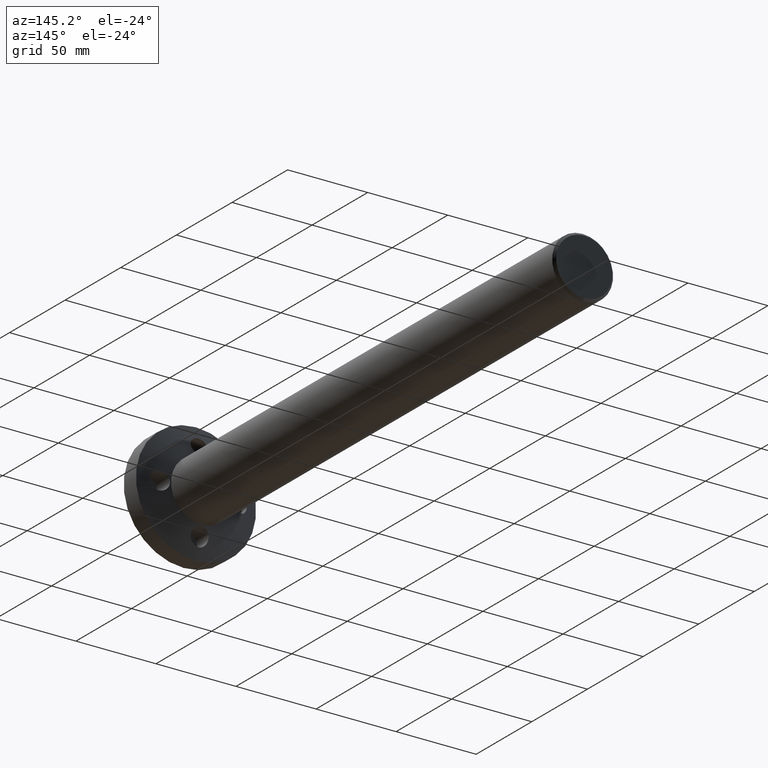
[diagram: clean part render]
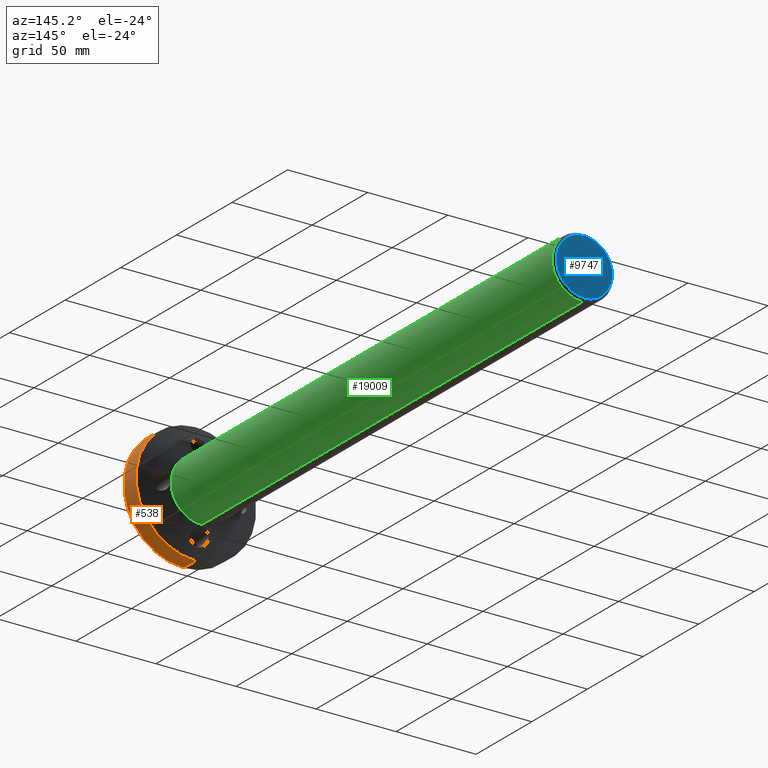
[diagram: same view with three faces highlighted in distinct colors, each labeled with its STEP entity id]
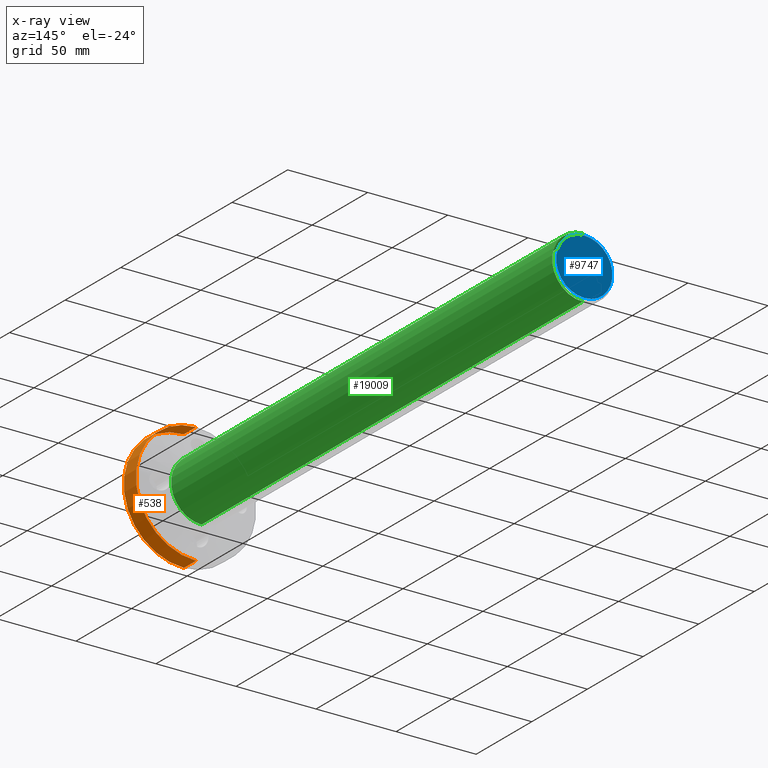
[diagram: x-ray of the same camera — body ghosted, the three highlighted faces saturated]
A machine part, auxiliary view with three faces highlighted in distinct colors.
The next image is the same camera in x-ray (body ghosted, the three faces saturated) — at least one of them is partly hidden behind the body in this view.
Their STEP definitions:

[orange] entity #538 — the highlighted cylindrical surface (partial cylindrical patch) has radius 37.5 mm, axis along (-0, -1, -0).
#434 = ORIENTED_EDGE ( 'NONE', *, *, #9275, .F. ) ;
#538 = ADVANCED_FACE ( 'NONE', ( #11305 ), #5795, .T. ) ;
#780 = CARTESIAN_POINT ( 'NONE',  ( 4.592425496802574400E-015, -19.77435314003868400, 37.50000000000000000 ) ) ;
#929 = EDGE_CURVE ( 'NONE', #5955, #2193, #1506, .T. ) ;
#983 = DIRECTION ( 'NONE',  ( -0.0000000000000000000, -1.000000000000000000, -0.0000000000000000000 ) ) ;
#1505 = CIRCLE ( 'NONE', #18237, 37.50000000000000000 ) ;
#1506 = CIRCLE ( 'NONE', #12130, 37.50000000000000000 ) ;
#1521 = DIRECTION ( 'NONE',  ( -0.0000000000000000000, -1.000000000000000000, -0.0000000000000000000 ) ) ;
#2193 = VERTEX_POINT ( 'NONE', #6236 ) ;
#4008 = VECTOR ( 'NONE', #1521, 1000.000000000000000 ) ;
#5655 = ORIENTED_EDGE ( 'NONE', *, *, #929, .F. ) ;
#5795 = CYLINDRICAL_SURFACE ( 'NONE', #17612, 37.50000000000000000 ) ;
#5955 = VERTEX_POINT ( 'NONE', #11967 ) ;
#6236 = CARTESIAN_POINT ( 'NONE',  ( 4.592425496802574400E-015, -3.070097820889738900, 37.50000000000000000 ) ) ;
#6649 = CARTESIAN_POINT ( 'NONE',  ( 0.0000000000000000000, 7.929902179110256600, -37.50000000000000700 ) ) ;
#6732 = VERTEX_POINT ( 'NONE', #7217 ) ;
#7069 = DIRECTION ( 'NONE',  ( -0.0000000000000000000, -1.000000000000000000, -0.0000000000000000000 ) ) ;
#7107 = LINE ( 'NONE', #780, #10692 ) ;
#7217 = CARTESIAN_POINT ( 'NONE',  ( 4.592425496802575200E-015, 7.929902179110256600, 37.50000000000000700 ) ) ;
#8534 = VERTEX_POINT ( 'NONE', #6649 ) ;
#8800 = CARTESIAN_POINT ( 'NONE',  ( 0.0000000000000000000, -19.77435314003868400, 0.0000000000000000000 ) ) ;
#8928 = CARTESIAN_POINT ( 'NONE',  ( 0.0000000000000000000, 7.929902179110256600, 0.0000000000000000000 ) ) ;
#9275 = EDGE_CURVE ( 'NONE', #8534, #5955, #10217, .T. ) ;
#9500 = EDGE_CURVE ( 'NONE', #6732, #2193, #7107, .T. ) ;
#10217 = LINE ( 'NONE', #10674, #4008 ) ;
#10345 = DIRECTION ( 'NONE',  ( 0.0000000000000000000, 0.0000000000000000000, -1.000000000000000000 ) ) ;
#10404 = DIRECTION ( 'NONE',  ( -0.0000000000000000000, -1.000000000000000000, -0.0000000000000000000 ) ) ;
#10674 = CARTESIAN_POINT ( 'NONE',  ( 0.0000000000000000000, -19.77435314003868400, -37.50000000000000000 ) ) ;
#10692 = VECTOR ( 'NONE', #15918, 1000.000000000000000 ) ;
#11305 = FACE_OUTER_BOUND ( 'NONE', #13419, .T. ) ;
#11680 = DIRECTION ( 'NONE',  ( 0.0000000000000000000, 0.0000000000000000000, -1.000000000000000000 ) ) ;
#11967 = CARTESIAN_POINT ( 'NONE',  ( 0.0000000000000000000, -3.070097820889738900, -37.50000000000000000 ) ) ;
#12130 = AXIS2_PLACEMENT_3D ( 'NONE', #19400, #7069, #11680 ) ;
#13419 = EDGE_LOOP ( 'NONE', ( #14744, #17684, #5655, #434 ) ) ;
#13961 = EDGE_CURVE ( 'NONE', #8534, #6732, #1505, .T. ) ;
#14744 = ORIENTED_EDGE ( 'NONE', *, *, #13961, .T. ) ;
#15918 = DIRECTION ( 'NONE',  ( -0.0000000000000000000, -1.000000000000000000, -0.0000000000000000000 ) ) ;
#17612 = AXIS2_PLACEMENT_3D ( 'NONE', #8800, #983, #19390 ) ;
#17684 = ORIENTED_EDGE ( 'NONE', *, *, #9500, .T. ) ;
#18237 = AXIS2_PLACEMENT_3D ( 'NONE', #8928, #10404, #10345 ) ;
#19390 = DIRECTION ( 'NONE',  ( 0.0000000000000000000, 0.0000000000000000000, -1.000000000000000000 ) ) ;
#19400 = CARTESIAN_POINT ( 'NONE',  ( 0.0000000000000000000, -3.070097820889738900, 0.0000000000000000000 ) ) ;

[blue] entity #9747 — the highlighted planar face has unit normal (0, -1, 0).
#1043 = AXIS2_PLACEMENT_3D ( 'NONE', #2573, #13101, #13414 ) ;
#2546 = AXIS2_PLACEMENT_3D ( 'NONE', #4601, #15245, #12309 ) ;
#2573 = CARTESIAN_POINT ( 'NONE',  ( -17.54999999999998600, 356.9299021791102300, -1.540743955509788700E-030 ) ) ;
#3446 = ORIENTED_EDGE ( 'NONE', *, *, #5634, .F. ) ;
#3691 = EDGE_CURVE ( 'NONE', #5019, #10603, #15384, .T. ) ;
#4601 = CARTESIAN_POINT ( 'NONE',  ( 0.0000000000000000000, 356.9299021791102300, 0.0000000000000000000 ) ) ;
#5019 = VERTEX_POINT ( 'NONE', #7922 ) ;
#5634 = EDGE_CURVE ( 'NONE', #10603, #5019, #17691, .T. ) ;
#7413 = CARTESIAN_POINT ( 'NONE',  ( 0.0000000000000000000, 356.9299021791102300, 0.0000000000000000000 ) ) ;
#7512 = EDGE_LOOP ( 'NONE', ( #10791, #3446 ) ) ;
#7922 = CARTESIAN_POINT ( 'NONE',  ( 0.0000000000000000000, 356.9299021791102300, -17.54999999999999400 ) ) ;
#8033 = AXIS2_PLACEMENT_3D ( 'NONE', #7413, #17875, #11940 ) ;
#8526 = FACE_OUTER_BOUND ( 'NONE', #7512, .T. ) ;
#9220 = CARTESIAN_POINT ( 'NONE',  ( 2.241103642439656700E-015, 356.9299021791102300, 17.55000000000000100 ) ) ;
#9747 = ADVANCED_FACE ( 'NONE', ( #8526 ), #14819, .F. ) ;
#10603 = VERTEX_POINT ( 'NONE', #9220 ) ;
#10791 = ORIENTED_EDGE ( 'NONE', *, *, #3691, .F. ) ;
#11940 = DIRECTION ( 'NONE',  ( 0.0000000000000000000, 0.0000000000000000000, -1.000000000000000000 ) ) ;
#12309 = DIRECTION ( 'NONE',  ( 0.0000000000000000000, 0.0000000000000000000, -1.000000000000000000 ) ) ;
#13101 = DIRECTION ( 'NONE',  ( 0.0000000000000000000, -1.000000000000000000, 0.0000000000000000000 ) ) ;
#13414 = DIRECTION ( 'NONE',  ( 0.0000000000000000000, 0.0000000000000000000, -1.000000000000000000 ) ) ;
#14819 = PLANE ( 'NONE',  #1043 ) ;
#15245 = DIRECTION ( 'NONE',  ( -0.0000000000000000000, -1.000000000000000000, 0.0000000000000000000 ) ) ;
#15384 = CIRCLE ( 'NONE', #8033, 17.54999999999999400 ) ;
#17691 = CIRCLE ( 'NONE', #2546, 17.54999999999999400 ) ;
#17875 = DIRECTION ( 'NONE',  ( -0.0000000000000000000, -1.000000000000000000, 0.0000000000000000000 ) ) ;

[green] entity #19009 — the highlighted cylindrical surface (partial cylindrical patch) has radius 19.05 mm, axis along (-0, -1, 0).
#67 = CARTESIAN_POINT ( 'NONE',  ( 0.0000000000000000000, 12.92990217911026100, -19.04999999999999700 ) ) ;
#243 = ORIENTED_EDGE ( 'NONE', *, *, #978, .T. ) ;
#391 = CYLINDRICAL_SURFACE ( 'NONE', #6121, 19.04999999999999000 ) ;
#978 = EDGE_CURVE ( 'NONE', #12289, #17051, #12247, .T. ) ;
#1010 = VECTOR ( 'NONE', #17849, 1000.000000000000000 ) ;
#1101 = CARTESIAN_POINT ( 'NONE',  ( 0.0000000000000000000, -27.76727455493247000, -19.04999999999999000 ) ) ;
#1216 = EDGE_CURVE ( 'NONE', #14892, #9332, #7966, .T. ) ;
#1846 = ORIENTED_EDGE ( 'NONE', *, *, #18580, .T. ) ;
#3068 = CARTESIAN_POINT ( 'NONE',  ( 0.0000000000000000000, 355.4299021791102300, 0.0000000000000000000 ) ) ;
#4075 = CARTESIAN_POINT ( 'NONE',  ( 2.332952152375706500E-015, -27.76727455493247000, 19.04999999999999000 ) ) ;
#4542 = DIRECTION ( 'NONE',  ( -0.0000000000000000000, -1.000000000000000000, 0.0000000000000000000 ) ) ;
#4549 = ORIENTED_EDGE ( 'NONE', *, *, #1216, .F. ) ;
#4865 = CIRCLE ( 'NONE', #7580, 19.04999999999999400 ) ;
#5412 = FACE_OUTER_BOUND ( 'NONE', #15725, .T. ) ;
#5591 = CARTESIAN_POINT ( 'NONE',  ( 0.0000000000000000000, 12.92990217911026100, 0.0000000000000000000 ) ) ;
#6121 = AXIS2_PLACEMENT_3D ( 'NONE', #10667, #4542, #15258 ) ;
#6940 = CARTESIAN_POINT ( 'NONE',  ( 2.332952152375707600E-015, 12.92990217911026100, 19.04999999999999700 ) ) ;
#7580 = AXIS2_PLACEMENT_3D ( 'NONE', #3068, #16855, #7749 ) ;
#7749 = DIRECTION ( 'NONE',  ( 0.0000000000000000000, 0.0000000000000000000, -1.000000000000000000 ) ) ;
#7966 = LINE ( 'NONE', #1101, #1010 ) ;
#8481 = DIRECTION ( 'NONE',  ( -0.0000000000000000000, -1.000000000000000000, 0.0000000000000000000 ) ) ;
#9332 = VERTEX_POINT ( 'NONE', #67 ) ;
#10667 = CARTESIAN_POINT ( 'NONE',  ( 0.0000000000000000000, -27.76727455493247000, 0.0000000000000000000 ) ) ;
#11799 = DIRECTION ( 'NONE',  ( -0.0000000000000000000, -1.000000000000000000, 0.0000000000000000000 ) ) ;
#12232 = CARTESIAN_POINT ( 'NONE',  ( 0.0000000000000000000, 355.4299021791102300, -19.04999999999999400 ) ) ;
#12247 = LINE ( 'NONE', #4075, #16761 ) ;
#12289 = VERTEX_POINT ( 'NONE', #12470 ) ;
#12311 = ORIENTED_EDGE ( 'NONE', *, *, #12662, .F. ) ;
#12470 = CARTESIAN_POINT ( 'NONE',  ( 2.332952152375707600E-015, 355.4299021791102300, 19.04999999999999700 ) ) ;
#12662 = EDGE_CURVE ( 'NONE', #9332, #17051, #17239, .T. ) ;
#13429 = DIRECTION ( 'NONE',  ( 0.0000000000000000000, 0.0000000000000000000, -1.000000000000000000 ) ) ;
#14892 = VERTEX_POINT ( 'NONE', #12232 ) ;
#15258 = DIRECTION ( 'NONE',  ( 0.0000000000000000000, 0.0000000000000000000, -1.000000000000000000 ) ) ;
#15282 = AXIS2_PLACEMENT_3D ( 'NONE', #5591, #11799, #13429 ) ;
#15725 = EDGE_LOOP ( 'NONE', ( #1846, #243, #12311, #4549 ) ) ;
#16761 = VECTOR ( 'NONE', #8481, 1000.000000000000000 ) ;
#16855 = DIRECTION ( 'NONE',  ( -0.0000000000000000000, -1.000000000000000000, 0.0000000000000000000 ) ) ;
#17051 = VERTEX_POINT ( 'NONE', #6940 ) ;
#17239 = CIRCLE ( 'NONE', #15282, 19.04999999999999000 ) ;
#17849 = DIRECTION ( 'NONE',  ( -0.0000000000000000000, -1.000000000000000000, 0.0000000000000000000 ) ) ;
#18580 = EDGE_CURVE ( 'NONE', #14892, #12289, #4865, .T. ) ;
#19009 = ADVANCED_FACE ( 'NONE', ( #5412 ), #391, .T. ) ;